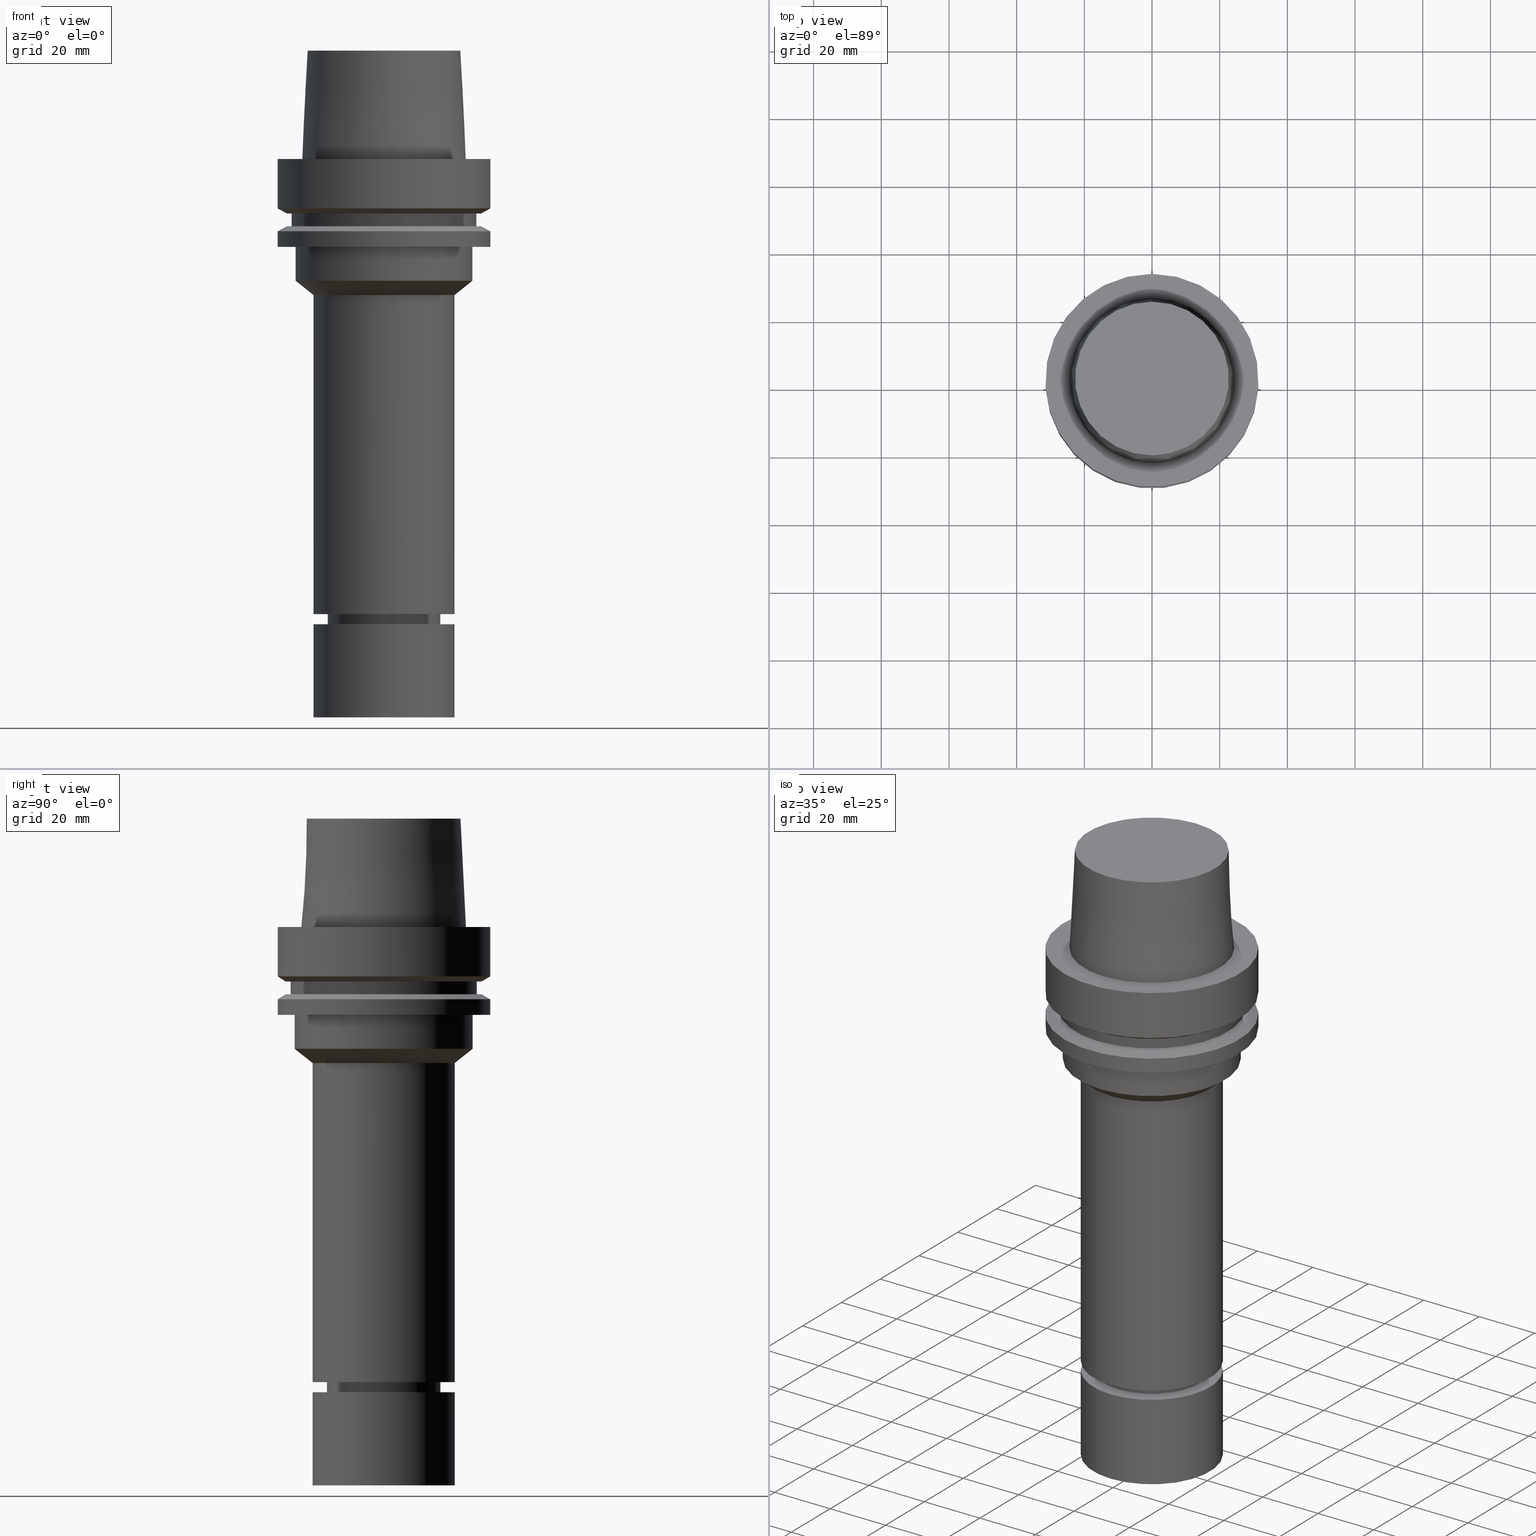
[diagram: canonical four-view strip — front | top / right | iso, engineering-drawing reading convention]
A machine part, canonical four-view strip (front | top / right | iso — engineering-drawing reading convention). The complete STEP part file that produces these views, byte-faithful:
ISO-10303-21;
HEADER;
FILE_DESCRIPTION((''),'1');
FILE_NAME('U:/Translate/02_3D_Field-HP\X2\FF71FF6FFF8CFF9F5916\X0\2013/02_Step_Field-HP\X2\FF71FF6FFF8CFF9F5916\X0\2013/HSK-A63-MEGAER25-165NL.stp','2016-06-22T00:27:31',(''),(''),'Spatial Interop R21 SP3','Kubotek KeyCreator 2011 V10.0.2 (22737)',' ');
FILE_SCHEMA(('automotive_design'));
ENDSEC;
DATA;
#1=MECHANICAL_DESIGN_GEOMETRIC_PRESENTATION_REPRESENTATION(' ',(#14,#15,#16,#17,#18,#19,#20,#21,#22,#23,#24,#25,#26,#27,#28,#29,#30,#31,#32,#33,#34,#35,#36,#37,#38,#39,#40,#41,#42,#43,#44,#45,#46,#47,#48,#49,#50,#51,#52,#53,#54,#55,#56,#57,#58,#59),#10);
#2=PRODUCT_DEFINITION_CONTEXT('',#60,'design');
#3=APPLICATION_PROTOCOL_DEFINITION('INTERNATIONAL STANDARD','automotive_design',1994,#60);
#4=PRODUCT_CATEGORY_RELATIONSHIP('NONE','NONE',#61,#62);
#5=SHAPE_DEFINITION_REPRESENTATION(#63,#64);
#6=PRODUCT_DEFINITION_CONTEXT('',#65,'design');
#7=APPLICATION_PROTOCOL_DEFINITION('INTERNATIONAL STANDARD','automotive_design',1994,#65);
#8=PRODUCT_CATEGORY_RELATIONSHIP('NONE','NONE',#66,#67);
#9=SHAPE_DEFINITION_REPRESENTATION(#68,#69);
#10= (GEOMETRIC_REPRESENTATION_CONTEXT(3)GLOBAL_UNCERTAINTY_ASSIGNED_CONTEXT((#72))GLOBAL_UNIT_ASSIGNED_CONTEXT((#74,#75,#76))REPRESENTATION_CONTEXT('NONE','WORKSPACE'));
#14=STYLED_ITEM('',(#78),#79);
#15=STYLED_ITEM('',(#80,#81),#82);
#16=STYLED_ITEM('',(#83,#84),#85);
#17=STYLED_ITEM('',(#86,#87),#88);
#18=STYLED_ITEM('',(#89),#90);
#19=STYLED_ITEM('',(#91,#92),#93);
#20=STYLED_ITEM('',(#94,#95),#96);
#21=STYLED_ITEM('',(#97,#98),#99);
#22=STYLED_ITEM('',(#100),#101);
#23=STYLED_ITEM('',(#102),#103);
#24=STYLED_ITEM('',(#104,#105),#106);
#25=STYLED_ITEM('',(#107),#108);
#26=STYLED_ITEM('',(#109,#110),#111);
#27=STYLED_ITEM('',(#112),#113);
#28=STYLED_ITEM('',(#114,#115),#116);
#29=STYLED_ITEM('',(#117),#118);
#30=STYLED_ITEM('',(#119,#120),#121);
#31=STYLED_ITEM('',(#122),#123);
#32=STYLED_ITEM('',(#124,#125),#126);
#33=STYLED_ITEM('',(#127,#128),#129);
#34=STYLED_ITEM('',(#130),#131);
#35=STYLED_ITEM('',(#132),#133);
#36=STYLED_ITEM('',(#134),#135);
#37=STYLED_ITEM('',(#136),#137);
#38=STYLED_ITEM('',(#138,#139),#140);
#39=STYLED_ITEM('',(#141,#142),#143);
#40=STYLED_ITEM('',(#144,#145),#146);
#41=STYLED_ITEM('',(#147,#148),#149);
#42=STYLED_ITEM('',(#150,#151),#152);
#43=STYLED_ITEM('',(#153),#154);
#44=STYLED_ITEM('',(#155),#156);
#45=STYLED_ITEM('',(#157,#158),#159);
#46=STYLED_ITEM('',(#160),#161);
#47=STYLED_ITEM('',(#162),#163);
#48=STYLED_ITEM('',(#164),#165);
#49=STYLED_ITEM('',(#166,#167),#168);
#50=STYLED_ITEM('',(#169,#170),#171);
#51=STYLED_ITEM('',(#172),#173);
#52=STYLED_ITEM('',(#174,#175),#176);
#53=STYLED_ITEM('',(#177,#178),#179);
#54=STYLED_ITEM('',(#180,#181),#182);
#55=STYLED_ITEM('',(#183,#184),#185);
#56=STYLED_ITEM('',(#186),#187);
#57=STYLED_ITEM('',(#188,#189),#190);
#58=STYLED_ITEM('',(#191),#192);
#59=STYLED_ITEM('',(#193),#194);
#60=APPLICATION_CONTEXT(' ');
#61=PRODUCT_CATEGORY('part','NONE');
#62=PRODUCT_RELATED_PRODUCT_CATEGORY('detail',' ',(#195));
#63=PRODUCT_DEFINITION_SHAPE('NONE','NONE',#196);
#64=ADVANCED_BREP_SHAPE_REPRESENTATION('Unnamed[1]',(#116,#197),#10);
#65=APPLICATION_CONTEXT(' ');
#66=PRODUCT_CATEGORY('part','NONE');
#67=PRODUCT_RELATED_PRODUCT_CATEGORY('detail',' ',(#198));
#68=PRODUCT_DEFINITION_SHAPE('NONE','NONE',#199);
#69=ADVANCED_BREP_SHAPE_REPRESENTATION('Unnamed[1]',(#152,#200),#10);
#72=UNCERTAINTY_MEASURE_WITH_UNIT(LENGTH_MEASURE(1.0E-006),#74,'','');
#74= (CONVERSION_BASED_UNIT('MILLIMETRE',#203)LENGTH_UNIT()NAMED_UNIT(#206));
#75= (NAMED_UNIT(#208)PLANE_ANGLE_UNIT()SI_UNIT($,.RADIAN.));
#76= (NAMED_UNIT(#208)SOLID_ANGLE_UNIT()SI_UNIT($,.STERADIAN.));
#78=PRESENTATION_STYLE_ASSIGNMENT((#214));
#79=EDGE_CURVE('Unnamed[1]',#215,#215,#216,.T.);
#80=PRESENTATION_STYLE_ASSIGNMENT((#217));
#81=PRESENTATION_STYLE_ASSIGNMENT((#218));
#82=ADVANCED_FACE('Unnamed[1]',(#219,#220),#221,.T.);
#83=PRESENTATION_STYLE_ASSIGNMENT((#222));
#84=PRESENTATION_STYLE_ASSIGNMENT((#223));
#85=ADVANCED_FACE('Unnamed[1]',(#224,#225),#226,.T.);
#86=PRESENTATION_STYLE_ASSIGNMENT((#227));
#87=PRESENTATION_STYLE_ASSIGNMENT((#228));
#88=ADVANCED_FACE('Unnamed[1]',(#229,#230),#231,.T.);
#89=PRESENTATION_STYLE_ASSIGNMENT((#232));
#90=EDGE_CURVE('Unnamed[1]',#233,#233,#234,.T.);
#91=PRESENTATION_STYLE_ASSIGNMENT((#235));
#92=PRESENTATION_STYLE_ASSIGNMENT((#236));
#93=ADVANCED_FACE('Unnamed[1]',(#237),#238,.T.);
#94=PRESENTATION_STYLE_ASSIGNMENT((#239));
#95=PRESENTATION_STYLE_ASSIGNMENT((#240));
#96=ADVANCED_FACE('Unnamed[1]',(#241,#242),#243,.T.);
#97=PRESENTATION_STYLE_ASSIGNMENT((#244));
#98=PRESENTATION_STYLE_ASSIGNMENT((#245));
#99=ADVANCED_FACE('Unnamed[1]',(#246,#247),#248,.T.);
#100=PRESENTATION_STYLE_ASSIGNMENT((#249));
#101=EDGE_CURVE('Unnamed[1]',#250,#250,#251,.T.);
#102=PRESENTATION_STYLE_ASSIGNMENT((#252));
#103=EDGE_CURVE('Unnamed[1]',#253,#253,#254,.T.);
#104=PRESENTATION_STYLE_ASSIGNMENT((#255));
#105=PRESENTATION_STYLE_ASSIGNMENT((#256));
#106=ADVANCED_FACE('Unnamed[1]',(#257),#258,.T.);
#107=PRESENTATION_STYLE_ASSIGNMENT((#259));
#108=EDGE_CURVE('Unnamed[1]',#260,#260,#261,.T.);
#109=PRESENTATION_STYLE_ASSIGNMENT((#262));
#110=PRESENTATION_STYLE_ASSIGNMENT((#263));
#111=ADVANCED_FACE('Unnamed[1]',(#264,#265),#266,.T.);
#112=PRESENTATION_STYLE_ASSIGNMENT((#267));
#113=EDGE_CURVE('Unnamed[1]',#268,#268,#269,.T.);
#114=PRESENTATION_STYLE_ASSIGNMENT((#270));
#115=PRESENTATION_STYLE_ASSIGNMENT((#271));
#116=MANIFOLD_SOLID_BREP('Unnamed[1]',#272);
#117=PRESENTATION_STYLE_ASSIGNMENT((#273));
#118=EDGE_CURVE('Unnamed[1]',#274,#274,#275,.T.);
#119=PRESENTATION_STYLE_ASSIGNMENT((#276));
#120=PRESENTATION_STYLE_ASSIGNMENT((#277));
#121=ADVANCED_FACE('Unnamed[1]',(#278,#279),#280,.T.);
#122=PRESENTATION_STYLE_ASSIGNMENT((#281));
#123=EDGE_CURVE('Unnamed[1]',#282,#282,#283,.T.);
#124=PRESENTATION_STYLE_ASSIGNMENT((#284));
#125=PRESENTATION_STYLE_ASSIGNMENT((#285));
#126=ADVANCED_FACE('Unnamed[1]',(#286,#287),#288,.T.);
#127=PRESENTATION_STYLE_ASSIGNMENT((#289));
#128=PRESENTATION_STYLE_ASSIGNMENT((#290));
#129=ADVANCED_FACE('Unnamed[1]',(#291,#292),#293,.T.);
#130=PRESENTATION_STYLE_ASSIGNMENT((#294));
#131=EDGE_CURVE('Unnamed[1]',#295,#295,#296,.T.);
#132=PRESENTATION_STYLE_ASSIGNMENT((#297));
#133=EDGE_CURVE('Unnamed[1]',#298,#298,#299,.T.);
#134=PRESENTATION_STYLE_ASSIGNMENT((#300));
#135=EDGE_CURVE('Unnamed[1]',#301,#301,#302,.T.);
#136=PRESENTATION_STYLE_ASSIGNMENT((#303));
#137=EDGE_CURVE('Unnamed[1]',#304,#304,#305,.T.);
#138=PRESENTATION_STYLE_ASSIGNMENT((#306));
#139=PRESENTATION_STYLE_ASSIGNMENT((#307));
#140=ADVANCED_FACE('Unnamed[1]',(#308,#309),#310,.T.);
#141=PRESENTATION_STYLE_ASSIGNMENT((#311));
#142=PRESENTATION_STYLE_ASSIGNMENT((#312));
#143=ADVANCED_FACE('Unnamed[1]',(#313,#314),#315,.T.);
#144=PRESENTATION_STYLE_ASSIGNMENT((#316));
#145=PRESENTATION_STYLE_ASSIGNMENT((#317));
#146=ADVANCED_FACE('Unnamed[1]',(#318,#319),#320,.T.);
#147=PRESENTATION_STYLE_ASSIGNMENT((#321));
#148=PRESENTATION_STYLE_ASSIGNMENT((#322));
#149=ADVANCED_FACE('Unnamed[1]',(#323,#324),#325,.T.);
#150=PRESENTATION_STYLE_ASSIGNMENT((#326));
#151=PRESENTATION_STYLE_ASSIGNMENT((#327));
#152=MANIFOLD_SOLID_BREP('Unnamed[1]',#328);
#153=PRESENTATION_STYLE_ASSIGNMENT((#329));
#154=EDGE_CURVE('Unnamed[1]',#330,#330,#331,.T.);
#155=PRESENTATION_STYLE_ASSIGNMENT((#332));
#156=EDGE_CURVE('Unnamed[1]',#333,#333,#334,.T.);
#157=PRESENTATION_STYLE_ASSIGNMENT((#335));
#158=PRESENTATION_STYLE_ASSIGNMENT((#336));
#159=ADVANCED_FACE('Unnamed[1]',(#337,#338),#339,.T.);
#160=PRESENTATION_STYLE_ASSIGNMENT((#340));
#161=EDGE_CURVE('Unnamed[1]',#341,#341,#342,.T.);
#162=PRESENTATION_STYLE_ASSIGNMENT((#343));
#163=EDGE_CURVE('Unnamed[1]',#344,#344,#345,.T.);
#164=PRESENTATION_STYLE_ASSIGNMENT((#346));
#165=EDGE_CURVE('Unnamed[1]',#347,#347,#348,.T.);
#166=PRESENTATION_STYLE_ASSIGNMENT((#349));
#167=PRESENTATION_STYLE_ASSIGNMENT((#350));
#168=ADVANCED_FACE('Unnamed[1]',(#351,#352),#353,.T.);
#169=PRESENTATION_STYLE_ASSIGNMENT((#354));
#170=PRESENTATION_STYLE_ASSIGNMENT((#355));
#171=ADVANCED_FACE('Unnamed[1]',(#356),#357,.T.);
#172=PRESENTATION_STYLE_ASSIGNMENT((#358));
#173=EDGE_CURVE('Unnamed[1]',#359,#359,#360,.T.);
#174=PRESENTATION_STYLE_ASSIGNMENT((#361));
#175=PRESENTATION_STYLE_ASSIGNMENT((#362));
#176=ADVANCED_FACE('Unnamed[1]',(#363),#364,.T.);
#177=PRESENTATION_STYLE_ASSIGNMENT((#365));
#178=PRESENTATION_STYLE_ASSIGNMENT((#366));
#179=ADVANCED_FACE('Unnamed[1]',(#367,#368),#369,.T.);
#180=PRESENTATION_STYLE_ASSIGNMENT((#370));
#181=PRESENTATION_STYLE_ASSIGNMENT((#371));
#182=ADVANCED_FACE('Unnamed[1]',(#372,#373),#374,.T.);
#183=PRESENTATION_STYLE_ASSIGNMENT((#375));
#184=PRESENTATION_STYLE_ASSIGNMENT((#376));
#185=ADVANCED_FACE('Unnamed[1]',(#377,#378),#379,.T.);
#186=PRESENTATION_STYLE_ASSIGNMENT((#380));
#187=EDGE_CURVE('Unnamed[1]',#381,#381,#382,.T.);
#188=PRESENTATION_STYLE_ASSIGNMENT((#383));
#189=PRESENTATION_STYLE_ASSIGNMENT((#384));
#190=ADVANCED_FACE('Unnamed[1]',(#385,#386),#387,.T.);
#191=PRESENTATION_STYLE_ASSIGNMENT((#388));
#192=EDGE_CURVE('Unnamed[1]',#389,#389,#390,.T.);
#193=PRESENTATION_STYLE_ASSIGNMENT((#391));
#194=EDGE_CURVE('Unnamed[1]',#392,#392,#393,.T.);
#195=PRODUCT('Unnamed[1]','Unnamed[1]','PART-Unnamed[1]-DESC',(#394));
#196=PRODUCT_DEFINITION('NONE','NONE',#395,#2);
#197=AXIS2_PLACEMENT_3D('',#396,#397,#398);
#198=PRODUCT('Unnamed[1]','Unnamed[1]','PART-Unnamed[1]-DESC',(#399));
#199=PRODUCT_DEFINITION('NONE','NONE',#400,#6);
#200=AXIS2_PLACEMENT_3D('',#401,#402,#403);
#203=LENGTH_MEASURE_WITH_UNIT(LENGTH_MEASURE(1.0),#404);
#206=DIMENSIONAL_EXPONENTS(1.0,0.0,0.0,0.0,0.0,0.0,0.0);
#208=DIMENSIONAL_EXPONENTS(0.0,0.0,0.0,0.0,0.0,0.0,0.0);
#214=CURVE_STYLE('',#405,POSITIVE_LENGTH_MEASURE(1000.0),#406);
#215=VERTEX_POINT('',#407);
#216=CIRCLE('',#408,21.0);
#217=SURFACE_STYLE_USAGE(.BOTH.,#409);
#218=CURVE_STYLE('',#410,POSITIVE_LENGTH_MEASURE(1000.0),#411);
#219=FACE_BOUND('',#412,.T.);
#220=FACE_BOUND('',#413,.T.);
#221=CONICAL_SURFACE('',#414,30.1987976320959,1.04719755119657);
#222=SURFACE_STYLE_USAGE(.BOTH.,#415);
#223=CURVE_STYLE('',#416,POSITIVE_LENGTH_MEASURE(1000.0),#417);
#224=FACE_BOUND('',#418,.T.);
#225=FACE_BOUND('',#419,.T.);
#226=CONICAL_SURFACE('',#420,30.1987976320959,1.04719755119657);
#227=SURFACE_STYLE_USAGE(.BOTH.,#421);
#228=CURVE_STYLE('',#422,POSITIVE_LENGTH_MEASURE(1000.0),#423);
#229=FACE_BOUND('',#424,.T.);
#230=FACE_BOUND('',#425,.T.);
#231=CYLINDRICAL_SURFACE('',#426,16.0);
#232=CURVE_STYLE('',#427,POSITIVE_LENGTH_MEASURE(1000.0),#428);
#233=VERTEX_POINT('',#429);
#234=CIRCLE('',#430,27.5);
#235=SURFACE_STYLE_USAGE(.BOTH.,#431);
#236=CURVE_STYLE('',#432,POSITIVE_LENGTH_MEASURE(1000.0),#433);
#237=FACE_OUTER_BOUND('',#434,.T.);
#238=PLANE('',#435);
#239=SURFACE_STYLE_USAGE(.BOTH.,#436);
#240=CURVE_STYLE('',#437,POSITIVE_LENGTH_MEASURE(1000.0),#438);
#241=FACE_BOUND('',#439,.T.);
#242=FACE_BOUND('',#440,.T.);
#243=CONICAL_SURFACE('',#441,15.4500000000003,0.523598775598051);
#244=SURFACE_STYLE_USAGE(.BOTH.,#442);
#245=CURVE_STYLE('',#443,POSITIVE_LENGTH_MEASURE(1000.0),#444);
#246=FACE_BOUND('',#445,.T.);
#247=FACE_BOUND('',#446,.T.);
#248=CONICAL_SURFACE('',#447,23.65,0.898977865223857);
#249=CURVE_STYLE('',#448,POSITIVE_LENGTH_MEASURE(1000.0),#449);
#250=VERTEX_POINT('',#450);
#251=CIRCLE('',#451,14.9000000000006);
#252=CURVE_STYLE('',#452,POSITIVE_LENGTH_MEASURE(1000.0),#453);
#253=VERTEX_POINT('',#454);
#254=CIRCLE('',#455,16.7499999999907);
#255=SURFACE_STYLE_USAGE(.BOTH.,#456);
#256=CURVE_STYLE('',#457,POSITIVE_LENGTH_MEASURE(1000.0),#458);
#257=FACE_OUTER_BOUND('',#459,.T.);
#258=PLANE('',#460);
#259=CURVE_STYLE('',#461,POSITIVE_LENGTH_MEASURE(1000.0),#462);
#260=VERTEX_POINT('',#463);
#261=CIRCLE('',#464,21.0);
#262=SURFACE_STYLE_USAGE(.BOTH.,#465);
#263=CURVE_STYLE('',#466,POSITIVE_LENGTH_MEASURE(1000.0),#467);
#264=FACE_BOUND('',#468,.T.);
#265=FACE_BOUND('',#469,.T.);
#266=CYLINDRICAL_SURFACE('',#470,16.7499999999962);
#267=CURVE_STYLE('',#471,POSITIVE_LENGTH_MEASURE(1000.0),#472);
#268=VERTEX_POINT('',#473);
#269=CIRCLE('',#474,24.315);
#270=SURFACE_STYLE_USAGE(.BOTH.,#475);
#271=CURVE_STYLE('',#476,POSITIVE_LENGTH_MEASURE(1000.0),#477);
#272=CLOSED_SHELL('',(#93,#96,#88,#179,#111,#143,#140,#99,#159,#182,#146,#82,#126,#121,#168,#85,#190,#185,#129,#171));
#273=CURVE_STYLE('',#478,POSITIVE_LENGTH_MEASURE(1000.0),#479);
#274=VERTEX_POINT('',#480);
#275=CIRCLE('',#481,21.0);
#276=SURFACE_STYLE_USAGE(.BOTH.,#482);
#277=CURVE_STYLE('',#483,POSITIVE_LENGTH_MEASURE(1000.0),#484);
#278=FACE_BOUND('',#485,.T.);
#279=FACE_BOUND('',#486,.T.);
#280=CYLINDRICAL_SURFACE('',#487,27.4999999999994);
#281=CURVE_STYLE('',#488,POSITIVE_LENGTH_MEASURE(1000.0),#489);
#282=VERTEX_POINT('',#490);
#283=CIRCLE('',#491,16.0);
#284=SURFACE_STYLE_USAGE(.BOTH.,#492);
#285=CURVE_STYLE('',#493,POSITIVE_LENGTH_MEASURE(1000.0),#494);
#286=FACE_BOUND('',#495,.T.);
#287=FACE_OUTER_BOUND('',#496,.T.);
#288=PLANE('',#497);
#289=SURFACE_STYLE_USAGE(.BOTH.,#498);
#290=CURVE_STYLE('',#499,POSITIVE_LENGTH_MEASURE(1000.0),#500);
#291=FACE_BOUND('',#501,.T.);
#292=FACE_BOUND('',#502,.T.);
#293=CONICAL_SURFACE('',#503,23.515,0.0499583957219433);
#294=CURVE_STYLE('',#504,POSITIVE_LENGTH_MEASURE(1000.0),#505);
#295=VERTEX_POINT('',#506);
#296=CIRCLE('',#507,16.0);
#297=CURVE_STYLE('',#508,POSITIVE_LENGTH_MEASURE(1000.0),#509);
#298=VERTEX_POINT('',#510);
#299=CIRCLE('',#511,26.3);
#300=CURVE_STYLE('',#512,POSITIVE_LENGTH_MEASURE(1000.0),#513);
#301=VERTEX_POINT('',#514);
#302=CIRCLE('',#515,28.8975952641919);
#303=CURVE_STYLE('',#516,POSITIVE_LENGTH_MEASURE(1000.0),#517);
#304=VERTEX_POINT('',#518);
#305=CIRCLE('',#519,31.4999999999998);
#306=SURFACE_STYLE_USAGE(.BOTH.,#520);
#307=CURVE_STYLE('',#521,POSITIVE_LENGTH_MEASURE(1000.0),#522);
#308=FACE_BOUND('',#523,.T.);
#309=FACE_BOUND('',#524,.T.);
#310=CYLINDRICAL_SURFACE('',#525,21.0);
#311=SURFACE_STYLE_USAGE(.BOTH.,#526);
#312=CURVE_STYLE('',#527,POSITIVE_LENGTH_MEASURE(1000.0),#528);
#313=FACE_OUTER_BOUND('',#529,.T.);
#314=FACE_BOUND('',#530,.T.);
#315=PLANE('',#531);
#316=SURFACE_STYLE_USAGE(.BOTH.,#532);
#317=CURVE_STYLE('',#533,POSITIVE_LENGTH_MEASURE(1000.0),#534);
#318=FACE_BOUND('',#535,.T.);
#319=FACE_BOUND('',#536,.T.);
#320=CYLINDRICAL_SURFACE('',#537,31.4999999999999);
#321=SURFACE_STYLE_USAGE(.BOTH.,#538);
#322=CURVE_STYLE('',#539,POSITIVE_LENGTH_MEASURE(1000.0),#540);
#323=FACE_BOUND('',#541,.T.);
#324=FACE_BOUND('',#542,.T.);
#325=CYLINDRICAL_SURFACE('',#543,21.0);
#326=SURFACE_STYLE_USAGE(.BOTH.,#544);
#327=CURVE_STYLE('',#545,POSITIVE_LENGTH_MEASURE(1000.0),#546);
#328=CLOSED_SHELL('',(#176,#106,#149));
#329=CURVE_STYLE('',#547,POSITIVE_LENGTH_MEASURE(1000.0),#548);
#330=VERTEX_POINT('',#549);
#331=CIRCLE('',#550,22.715);
#332=CURVE_STYLE('',#551,POSITIVE_LENGTH_MEASURE(1000.0),#552);
#333=VERTEX_POINT('',#553);
#334=CIRCLE('',#554,16.7500000000017);
#335=SURFACE_STYLE_USAGE(.BOTH.,#555);
#336=CURVE_STYLE('',#556,POSITIVE_LENGTH_MEASURE(1000.0),#557);
#337=FACE_BOUND('',#558,.T.);
#338=FACE_BOUND('',#559,.T.);
#339=CYLINDRICAL_SURFACE('',#560,26.3);
#340=CURVE_STYLE('',#561,POSITIVE_LENGTH_MEASURE(1000.0),#562);
#341=VERTEX_POINT('',#563);
#342=CIRCLE('',#564,27.4999999999989);
#343=CURVE_STYLE('',#565,POSITIVE_LENGTH_MEASURE(1000.0),#566);
#344=VERTEX_POINT('',#567);
#345=CIRCLE('',#568,28.8975952641919);
#346=CURVE_STYLE('',#569,POSITIVE_LENGTH_MEASURE(1000.0),#570);
#347=VERTEX_POINT('',#571);
#348=CIRCLE('',#572,26.3);
#349=SURFACE_STYLE_USAGE(.BOTH.,#573);
#350=CURVE_STYLE('',#574,POSITIVE_LENGTH_MEASURE(1000.0),#575);
#351=FACE_OUTER_BOUND('',#576,.T.);
#352=FACE_BOUND('',#577,.T.);
#353=PLANE('',#578);
#354=SURFACE_STYLE_USAGE(.BOTH.,#579);
#355=CURVE_STYLE('',#580,POSITIVE_LENGTH_MEASURE(1000.0),#581);
#356=FACE_OUTER_BOUND('',#582,.T.);
#357=PLANE('',#583);
#358=CURVE_STYLE('',#584,POSITIVE_LENGTH_MEASURE(1000.0),#585);
#359=VERTEX_POINT('',#586);
#360=CIRCLE('',#587,31.5);
#361=SURFACE_STYLE_USAGE(.BOTH.,#588);
#362=CURVE_STYLE('',#589,POSITIVE_LENGTH_MEASURE(1000.0),#590);
#363=FACE_OUTER_BOUND('',#591,.T.);
#364=PLANE('',#592);
#365=SURFACE_STYLE_USAGE(.BOTH.,#593);
#366=CURVE_STYLE('',#594,POSITIVE_LENGTH_MEASURE(1000.0),#595);
#367=FACE_BOUND('',#596,.T.);
#368=FACE_BOUND('',#597,.T.);
#369=CONICAL_SURFACE('',#598,16.3750000000008,0.846178977409367);
#370=SURFACE_STYLE_USAGE(.BOTH.,#599);
#371=CURVE_STYLE('',#600,POSITIVE_LENGTH_MEASURE(1000.0),#601);
#372=FACE_OUTER_BOUND('',#602,.T.);
#373=FACE_BOUND('',#603,.T.);
#374=PLANE('',#604);
#375=SURFACE_STYLE_USAGE(.BOTH.,#605);
#376=CURVE_STYLE('',#606,POSITIVE_LENGTH_MEASURE(1000.0),#607);
#377=FACE_BOUND('',#608,.T.);
#378=FACE_OUTER_BOUND('',#609,.T.);
#379=PLANE('',#610);
#380=CURVE_STYLE('',#611,POSITIVE_LENGTH_MEASURE(1000.0),#612);
#381=VERTEX_POINT('',#613);
#382=CIRCLE('',#614,31.5000000000001);
#383=SURFACE_STYLE_USAGE(.BOTH.,#615);
#384=CURVE_STYLE('',#616,POSITIVE_LENGTH_MEASURE(1000.0),#617);
#385=FACE_BOUND('',#618,.T.);
#386=FACE_BOUND('',#619,.T.);
#387=CYLINDRICAL_SURFACE('',#620,31.5);
#388=CURVE_STYLE('',#621,POSITIVE_LENGTH_MEASURE(1000.0),#622);
#389=VERTEX_POINT('',#623);
#390=CIRCLE('',#624,21.0);
#391=CURVE_STYLE('',#625,POSITIVE_LENGTH_MEASURE(1000.0),#626);
#392=VERTEX_POINT('',#627);
#393=CIRCLE('',#628,31.5);
#394=PRODUCT_CONTEXT('',#60,'mechanical');
#395=PRODUCT_DEFINITION_FORMATION_WITH_SPECIFIED_SOURCE(' ','NONE',#195,.NOT_KNOWN.);
#396=CARTESIAN_POINT('',(0.0,0.0,0.0));
#397=DIRECTION('',(0.0,0.0,1.0));
#398=DIRECTION('',(1.0,0.0,0.0));
#399=PRODUCT_CONTEXT('',#65,'mechanical');
#400=PRODUCT_DEFINITION_FORMATION_WITH_SPECIFIED_SOURCE(' ','NONE',#198,.NOT_KNOWN.);
#401=CARTESIAN_POINT('',(0.0,0.0,0.0));
#402=DIRECTION('',(0.0,0.0,1.0));
#403=DIRECTION('',(1.0,0.0,0.0));
#404= (NAMED_UNIT(#206)LENGTH_UNIT()SI_UNIT(.MILLI.,.METRE.));
#405=DRAUGHTING_PRE_DEFINED_CURVE_FONT('continuous');
#406=COLOUR_RGB('',0.0,1.0,0.0);
#407=CARTESIAN_POINT('',(8.41944674413805E-015,21.0,-137.5));
#408=AXIS2_PLACEMENT_3D('',#630,#631,#632);
#409=SURFACE_SIDE_STYLE('',(#633));
#410=DRAUGHTING_PRE_DEFINED_CURVE_FONT('continuous');
#411=COLOUR_RGB('',0.0,1.0,0.0);
#412=EDGE_LOOP('',(#634));
#413=EDGE_LOOP('',(#635));
#414=AXIS2_PLACEMENT_3D('',#636,#637,#638);
#415=SURFACE_SIDE_STYLE('',(#639));
#416=DRAUGHTING_PRE_DEFINED_CURVE_FONT('continuous');
#417=COLOUR_RGB('',0.0,1.0,0.0);
#418=EDGE_LOOP('',(#640));
#419=EDGE_LOOP('',(#641));
#420=AXIS2_PLACEMENT_3D('',#642,#643,#644);
#421=SURFACE_SIDE_STYLE('',(#645));
#422=DRAUGHTING_PRE_DEFINED_CURVE_FONT('continuous');
#423=COLOUR_RGB('',0.0,1.0,0.0);
#424=EDGE_LOOP('',(#646));
#425=EDGE_LOOP('',(#647));
#426=AXIS2_PLACEMENT_3D('',#648,#649,#650);
#427=DRAUGHTING_PRE_DEFINED_CURVE_FONT('continuous');
#428=COLOUR_RGB('',0.0,1.0,0.0);
#429=CARTESIAN_POINT('',(9.87371481812537E-016,27.5,-16.1249999999997));
#430=AXIS2_PLACEMENT_3D('',#651,#652,#653);
#431=SURFACE_SIDE_STYLE('',(#654));
#432=DRAUGHTING_PRE_DEFINED_CURVE_FONT('continuous');
#433=COLOUR_RGB('',0.0,1.0,0.0);
#434=EDGE_LOOP('',(#655));
#435=AXIS2_PLACEMENT_3D('',#656,#657,#658);
#436=SURFACE_SIDE_STYLE('',(#659));
#437=DRAUGHTING_PRE_DEFINED_CURVE_FONT('continuous');
#438=COLOUR_RGB('',0.0,1.0,0.0);
#439=EDGE_LOOP('',(#660));
#440=EDGE_LOOP('',(#661));
#441=AXIS2_PLACEMENT_3D('',#662,#663,#664);
#442=SURFACE_SIDE_STYLE('',(#665));
#443=DRAUGHTING_PRE_DEFINED_CURVE_FONT('continuous');
#444=COLOUR_RGB('',0.0,1.0,0.0);
#445=EDGE_LOOP('',(#666));
#446=EDGE_LOOP('',(#667));
#447=AXIS2_PLACEMENT_3D('',#668,#669,#670);
#448=DRAUGHTING_PRE_DEFINED_CURVE_FONT('continuous');
#449=COLOUR_RGB('',0.0,1.0,0.0);
#450=CARTESIAN_POINT('',(9.47876622540052E-015,14.9000000000007,-154.8));
#451=AXIS2_PLACEMENT_3D('',#671,#672,#673);
#452=DRAUGHTING_PRE_DEFINED_CURVE_FONT('continuous');
#453=COLOUR_RGB('',0.0,1.0,0.0);
#454=CARTESIAN_POINT('',(8.2357497242659E-015,16.7499999999907,-134.499999999999));
#455=AXIS2_PLACEMENT_3D('',#674,#675,#676);
#456=SURFACE_SIDE_STYLE('',(#677));
#457=DRAUGHTING_PRE_DEFINED_CURVE_FONT('continuous');
#458=COLOUR_RGB('',0.0,1.0,0.0);
#459=EDGE_LOOP('',(#678));
#460=AXIS2_PLACEMENT_3D('',#679,#680,#681);
#461=DRAUGHTING_PRE_DEFINED_CURVE_FONT('continuous');
#462=COLOUR_RGB('',0.0,1.0,0.0);
#463=CARTESIAN_POINT('',(1.01033360929657E-014,21.0,-165.0));
#464=AXIS2_PLACEMENT_3D('',#682,#683,#684);
#465=SURFACE_SIDE_STYLE('',(#685));
#466=DRAUGHTING_PRE_DEFINED_CURVE_FONT('continuous');
#467=COLOUR_RGB('',0.0,1.0,0.0);
#468=EDGE_LOOP('',(#686));
#469=EDGE_LOOP('',(#687));
#470=AXIS2_PLACEMENT_3D('',#688,#689,#690);
#471=DRAUGHTING_PRE_DEFINED_CURVE_FONT('continuous');
#472=COLOUR_RGB('',0.0,1.0,0.0);
#473=CARTESIAN_POINT('',(-2.99705514225764E-031,24.315,2.97772869212679E-015));
#474=AXIS2_PLACEMENT_3D('',#691,#692,#693);
#475=SURFACE_SIDE_STYLE('',(#694));
#476=DRAUGHTING_PRE_DEFINED_CURVE_FONT('continuous');
#477=COLOUR_RGB('',0.0,1.0,0.0);
#478=DRAUGHTING_PRE_DEFINED_CURVE_FONT('continuous');
#479=COLOUR_RGB('',0.0,1.0,0.0);
#480=CARTESIAN_POINT('',(2.46243754685596E-015,21.0,-40.21465697));
#481=AXIS2_PLACEMENT_3D('',#695,#696,#697);
#482=SURFACE_SIDE_STYLE('',(#698));
#483=DRAUGHTING_PRE_DEFINED_CURVE_FONT('continuous');
#484=COLOUR_RGB('',0.0,1.0,0.0);
#485=EDGE_LOOP('',(#699));
#486=EDGE_LOOP('',(#700));
#487=AXIS2_PLACEMENT_3D('',#701,#702,#703);
#488=DRAUGHTING_PRE_DEFINED_CURVE_FONT('continuous');
#489=COLOUR_RGB('',0.0,1.0,0.0);
#490=CARTESIAN_POINT('',(9.36210294914078E-015,16.0,-152.894744111674));
#491=AXIS2_PLACEMENT_3D('',#704,#705,#706);
#492=SURFACE_SIDE_STYLE('',(#707));
#493=DRAUGHTING_PRE_DEFINED_CURVE_FONT('continuous');
#494=COLOUR_RGB('',0.0,1.0,0.0);
#495=EDGE_LOOP('',(#708));
#496=EDGE_LOOP('',(#709));
#497=AXIS2_PLACEMENT_3D('',#710,#711,#712);
#498=SURFACE_SIDE_STYLE('',(#713));
#499=DRAUGHTING_PRE_DEFINED_CURVE_FONT('continuous');
#500=COLOUR_RGB('',0.0,1.0,0.0);
#501=EDGE_LOOP('',(#714));
#502=EDGE_LOOP('',(#715));
#503=AXIS2_PLACEMENT_3D('',#716,#717,#718);
#504=DRAUGHTING_PRE_DEFINED_CURVE_FONT('continuous');
#505=COLOUR_RGB('',0.0,1.0,0.0);
#506=CARTESIAN_POINT('',(8.64179837321123E-015,16.0,-141.131277674967));
#507=AXIS2_PLACEMENT_3D('',#719,#720,#721);
#508=DRAUGHTING_PRE_DEFINED_CURVE_FONT('continuous');
#509=COLOUR_RGB('',0.0,1.0,0.0);
#510=CARTESIAN_POINT('',(2.20436423799915E-015,26.3,-35.9999999923883));
#511=AXIS2_PLACEMENT_3D('',#722,#723,#724);
#512=DRAUGHTING_PRE_DEFINED_CURVE_FONT('continuous');
#513=COLOUR_RGB('',0.0,1.0,0.0);
#514=CARTESIAN_POINT('',(1.21699275665268E-015,28.8975952641919,-19.875));
#515=AXIS2_PLACEMENT_3D('',#725,#726,#727);
#516=DRAUGHTING_PRE_DEFINED_CURVE_FONT('continuous');
#517=COLOUR_RGB('',0.0,1.0,0.0);
#518=CARTESIAN_POINT('',(1.59204083889155E-015,31.4999999999998,-25.9999999999999));
#519=AXIS2_PLACEMENT_3D('',#728,#729,#730);
#520=SURFACE_SIDE_STYLE('',(#731));
#521=DRAUGHTING_PRE_DEFINED_CURVE_FONT('continuous');
#522=COLOUR_RGB('',0.0,1.0,0.0);
#523=EDGE_LOOP('',(#732));
#524=EDGE_LOOP('',(#733));
#525=AXIS2_PLACEMENT_3D('',#734,#735,#736);
#526=SURFACE_SIDE_STYLE('',(#737));
#527=DRAUGHTING_PRE_DEFINED_CURVE_FONT('continuous');
#528=COLOUR_RGB('',0.0,1.0,0.0);
#529=EDGE_LOOP('',(#738));
#530=EDGE_LOOP('',(#739));
#531=AXIS2_PLACEMENT_3D('',#740,#741,#742);
#532=SURFACE_SIDE_STYLE('',(#743));
#533=DRAUGHTING_PRE_DEFINED_CURVE_FONT('continuous');
#534=COLOUR_RGB('',0.0,1.0,0.0);
#535=EDGE_LOOP('',(#744));
#536=EDGE_LOOP('',(#745));
#537=AXIS2_PLACEMENT_3D('',#746,#747,#748);
#538=SURFACE_SIDE_STYLE('',(#749));
#539=DRAUGHTING_PRE_DEFINED_CURVE_FONT('continuous');
#540=COLOUR_RGB('',0.0,1.0,0.0);
#541=EDGE_LOOP('',(#750));
#542=EDGE_LOOP('',(#751));
#543=AXIS2_PLACEMENT_3D('',#752,#753,#754);
#544=SURFACE_SIDE_STYLE('',(#755));
#545=DRAUGHTING_PRE_DEFINED_CURVE_FONT('continuous');
#546=COLOUR_RGB('',0.0,1.0,0.0);
#547=DRAUGHTING_PRE_DEFINED_CURVE_FONT('continuous');
#548=COLOUR_RGB('',0.0,1.0,0.0);
#549=CARTESIAN_POINT('',(-1.95943487863576E-015,22.715,32.0));
#550=AXIS2_PLACEMENT_3D('',#756,#757,#758);
#551=DRAUGHTING_PRE_DEFINED_CURVE_FONT('continuous');
#552=COLOUR_RGB('',0.0,1.0,0.0);
#553=CARTESIAN_POINT('',(8.60114298906023E-015,16.7500000000017,-140.467324865401));
#554=AXIS2_PLACEMENT_3D('',#759,#760,#761);
#555=SURFACE_SIDE_STYLE('',(#762));
#556=DRAUGHTING_PRE_DEFINED_CURVE_FONT('continuous');
#557=COLOUR_RGB('',0.0,1.0,0.0);
#558=EDGE_LOOP('',(#763));
#559=EDGE_LOOP('',(#764));
#560=AXIS2_PLACEMENT_3D('',#765,#766,#767);
#561=DRAUGHTING_PRE_DEFINED_CURVE_FONT('continuous');
#562=COLOUR_RGB('',0.0,1.0,0.0);
#563=CARTESIAN_POINT('',(1.21699275665276E-015,27.4999999999989,-19.8750000000013));
#564=AXIS2_PLACEMENT_3D('',#768,#769,#770);
#565=DRAUGHTING_PRE_DEFINED_CURVE_FONT('continuous');
#566=COLOUR_RGB('',0.0,1.0,0.0);
#567=CARTESIAN_POINT('',(9.87371481812551E-016,28.8975952641919,-16.125));
#568=AXIS2_PLACEMENT_3D('',#771,#772,#773);
#569=DRAUGHTING_PRE_DEFINED_CURVE_FONT('continuous');
#570=COLOUR_RGB('',0.0,1.0,0.0);
#571=CARTESIAN_POINT('',(1.59204083889154E-015,26.3,-25.9999999999997));
#572=AXIS2_PLACEMENT_3D('',#774,#775,#776);
#573=SURFACE_SIDE_STYLE('',(#777));
#574=DRAUGHTING_PRE_DEFINED_CURVE_FONT('continuous');
#575=COLOUR_RGB('',0.0,1.0,0.0);
#576=EDGE_LOOP('',(#778));
#577=EDGE_LOOP('',(#779));
#578=AXIS2_PLACEMENT_3D('',#780,#781,#782);
#579=SURFACE_SIDE_STYLE('',(#783));
#580=DRAUGHTING_PRE_DEFINED_CURVE_FONT('continuous');
#581=COLOUR_RGB('',0.0,1.0,0.0);
#582=EDGE_LOOP('',(#784));
#583=AXIS2_PLACEMENT_3D('',#785,#786,#787);
#584=DRAUGHTING_PRE_DEFINED_CURVE_FONT('continuous');
#585=COLOUR_RGB('',0.0,1.0,0.0);
#586=CARTESIAN_POINT('',(1.30899429078397E-015,31.5,-21.3774990747592));
#587=AXIS2_PLACEMENT_3D('',#788,#789,#790);
#588=SURFACE_SIDE_STYLE('',(#791));
#589=DRAUGHTING_PRE_DEFINED_CURVE_FONT('continuous');
#590=COLOUR_RGB('',0.0,1.0,0.0);
#591=EDGE_LOOP('',(#792));
#592=AXIS2_PLACEMENT_3D('',#793,#794,#795);
#593=SURFACE_SIDE_STYLE('',(#796));
#594=DRAUGHTING_PRE_DEFINED_CURVE_FONT('continuous');
#595=COLOUR_RGB('',0.0,1.0,0.0);
#596=EDGE_LOOP('',(#797));
#597=EDGE_LOOP('',(#798));
#598=AXIS2_PLACEMENT_3D('',#799,#800,#801);
#599=SURFACE_SIDE_STYLE('',(#802));
#600=DRAUGHTING_PRE_DEFINED_CURVE_FONT('continuous');
#601=COLOUR_RGB('',0.0,1.0,0.0);
#602=EDGE_LOOP('',(#803));
#603=EDGE_LOOP('',(#804));
#604=AXIS2_PLACEMENT_3D('',#805,#806,#807);
#605=SURFACE_SIDE_STYLE('',(#808));
#606=DRAUGHTING_PRE_DEFINED_CURVE_FONT('continuous');
#607=COLOUR_RGB('',0.0,1.0,0.0);
#608=EDGE_LOOP('',(#809));
#609=EDGE_LOOP('',(#810));
#610=AXIS2_PLACEMENT_3D('',#811,#812,#813);
#611=DRAUGHTING_PRE_DEFINED_CURVE_FONT('continuous');
#612=COLOUR_RGB('',0.0,1.0,0.0);
#613=CARTESIAN_POINT('',(-3.88267476788467E-031,31.5000000000001,3.85763741731417E-015));
#614=AXIS2_PLACEMENT_3D('',#814,#815,#816);
#615=SURFACE_SIDE_STYLE('',(#817));
#616=DRAUGHTING_PRE_DEFINED_CURVE_FONT('continuous');
#617=COLOUR_RGB('',0.0,1.0,0.0);
#618=EDGE_LOOP('',(#818));
#619=EDGE_LOOP('',(#819));
#620=AXIS2_PLACEMENT_3D('',#820,#821,#822);
#621=DRAUGHTING_PRE_DEFINED_CURVE_FONT('continuous');
#622=COLOUR_RGB('',0.0,1.0,0.0);
#623=CARTESIAN_POINT('',(8.23574972426594E-015,21.0,-134.5));
#624=AXIS2_PLACEMENT_3D('',#823,#824,#825);
#625=DRAUGHTING_PRE_DEFINED_CURVE_FONT('continuous');
#626=COLOUR_RGB('',0.0,1.0,0.0);
#627=CARTESIAN_POINT('',(8.95369947681261E-016,31.5,-14.6225009252407));
#628=AXIS2_PLACEMENT_3D('',#826,#827,#828);
#630=CARTESIAN_POINT('',(8.41944674413805E-015,1.68388934882761E-014,-137.5));
#631=DIRECTION('',(6.12323399573677E-017,1.22464679914735E-016,-1.0));
#632=DIRECTION('',(-1.23259516440783E-032,1.0,1.22464679914735E-016));
#633=SURFACE_STYLE_FILL_AREA(#829);
#634=ORIENTED_EDGE('',*,*,#135,.F.);
#635=ORIENTED_EDGE('',*,*,#173,.T.);
#636=CARTESIAN_POINT('',(1.26299352371833E-015,2.52598704743665E-015,-20.6262495373796));
#637=DIRECTION('',(6.12323399573677E-017,1.22464679914735E-016,-1.0));
#638=DIRECTION('',(-1.23259516440783E-032,1.0,1.22464679914735E-016));
#639=SURFACE_STYLE_FILL_AREA(#830);
#640=ORIENTED_EDGE('',*,*,#194,.F.);
#641=ORIENTED_EDGE('',*,*,#163,.T.);
#642=CARTESIAN_POINT('',(9.41370714746907E-016,1.88274142949381E-015,-15.3737504626203));
#643=DIRECTION('',(-6.12323399573677E-017,-1.22464679914735E-016,1.0));
#644=DIRECTION('',(-1.23259516440783E-032,1.0,1.22464679914735E-016));
#645=SURFACE_STYLE_FILL_AREA(#831);
#646=ORIENTED_EDGE('',*,*,#131,.F.);
#647=ORIENTED_EDGE('',*,*,#123,.T.);
#648=CARTESIAN_POINT('',(9.00195066117601E-015,1.8003901322352E-014,-147.013010893321));
#649=DIRECTION('',(-6.12323399573677E-017,-1.22464679914735E-016,1.0));
#650=DIRECTION('',(-1.23259516440783E-032,1.0,1.22464679914735E-016));
#651=CARTESIAN_POINT('',(9.87371481812538E-016,1.97474296362508E-015,-16.1249999999997));
#652=DIRECTION('',(-6.12323399573677E-017,-1.22464679914735E-016,1.0));
#653=DIRECTION('',(-1.23259516440783E-032,1.0,1.22464679914735E-016));
#654=SURFACE_STYLE_FILL_AREA(#832);
#655=ORIENTED_EDGE('',*,*,#101,.F.);
#656=CARTESIAN_POINT('',(9.47876622540051E-015,7.45000000000034,-154.8));
#657=DIRECTION('',(6.12323399573677E-017,-2.65824972010006E-014,-1.0));
#658=DIRECTION('',(-1.62288135279668E-030,-1.0,2.65824972010006E-014));
#659=SURFACE_STYLE_FILL_AREA(#833);
#660=ORIENTED_EDGE('',*,*,#123,.F.);
#661=ORIENTED_EDGE('',*,*,#101,.T.);
#662=CARTESIAN_POINT('',(9.42043458727065E-015,1.88408691745413E-014,-153.847372055837));
#663=DIRECTION('',(-6.12323399573677E-017,-1.22464679914735E-016,1.0));
#664=DIRECTION('',(-1.23259516440783E-032,1.0,1.22464679914735E-016));
#665=SURFACE_STYLE_FILL_AREA(#834);
#666=ORIENTED_EDGE('',*,*,#133,.F.);
#667=ORIENTED_EDGE('',*,*,#118,.T.);
#668=CARTESIAN_POINT('',(2.33340089242756E-015,4.66680178485512E-015,-38.1073284811941));
#669=DIRECTION('',(-6.12323399573677E-017,-1.22464679914735E-016,1.0));
#670=DIRECTION('',(-1.23259516440783E-032,1.0,1.22464679914735E-016));
#671=CARTESIAN_POINT('',(9.47876622540052E-015,1.8957532450801E-014,-154.8));
#672=DIRECTION('',(-6.12323399573677E-017,-1.22464679914735E-016,1.0));
#673=DIRECTION('',(-1.23259516440783E-032,1.0,1.22464679914735E-016));
#674=CARTESIAN_POINT('',(8.2357497242659E-015,1.64714994485318E-014,-134.499999999999));
#675=DIRECTION('',(-6.12323399573677E-017,-1.22464679914735E-016,1.0));
#676=DIRECTION('',(-1.23259516440783E-032,1.0,1.22464679914735E-016));
#677=SURFACE_STYLE_FILL_AREA(#835);
#678=ORIENTED_EDGE('',*,*,#79,.F.);
#679=CARTESIAN_POINT('',(8.41944674413805E-015,10.5,-137.5));
#680=DIRECTION('',(-6.12323399573677E-017,-1.22464679914735E-016,1.0));
#681=DIRECTION('',(1.23259516440783E-032,-1.0,-1.22464679914735E-016));
#682=CARTESIAN_POINT('',(1.01033360929657E-014,2.02066721859313E-014,-165.0));
#683=DIRECTION('',(6.12323399573677E-017,1.22464679914735E-016,-1.0));
#684=DIRECTION('',(-1.23259516440783E-032,1.0,1.22464679914735E-016));
#685=SURFACE_STYLE_FILL_AREA(#836);
#686=ORIENTED_EDGE('',*,*,#103,.F.);
#687=ORIENTED_EDGE('',*,*,#156,.T.);
#688=CARTESIAN_POINT('',(8.41844635666307E-015,1.68368927133261E-014,-137.4836624327));
#689=DIRECTION('',(-6.12323399573676E-017,-1.22464679914735E-016,1.0));
#690=DIRECTION('',(-1.23259516440783E-032,1.0,1.22464679914735E-016));
#691=CARTESIAN_POINT('',(0.0,0.0,0.0));
#692=DIRECTION('',(-6.12323399573677E-017,-1.22464679914735E-016,1.0));
#693=DIRECTION('',(-1.23259516440783E-032,1.0,1.22464679914735E-016));
#694=SURFACE_STYLE_FILL_AREA(#837);
#695=CARTESIAN_POINT('',(2.46243754685597E-015,4.92487509371193E-015,-40.21465697));
#696=DIRECTION('',(-6.12323399573677E-017,-1.22464679914735E-016,1.0));
#697=DIRECTION('',(-1.23259516440783E-032,1.0,1.22464679914735E-016));
#698=SURFACE_STYLE_FILL_AREA(#838);
#699=ORIENTED_EDGE('',*,*,#90,.F.);
#700=ORIENTED_EDGE('',*,*,#161,.T.);
#701=CARTESIAN_POINT('',(1.10218211923265E-015,2.2043642384653E-015,-18.0000000000005));
#702=DIRECTION('',(-6.12323399573677E-017,-1.22464679914735E-016,1.0));
#703=DIRECTION('',(-1.23259516440783E-032,1.0,1.22464679914735E-016));
#704=CARTESIAN_POINT('',(9.36210294914078E-015,1.87242058982816E-014,-152.894744111674));
#705=DIRECTION('',(-6.12323399573677E-017,-1.22464679914735E-016,1.0));
#706=DIRECTION('',(-1.23259516440783E-032,1.0,1.22464679914735E-016));
#707=SURFACE_STYLE_FILL_AREA(#839);
#708=ORIENTED_EDGE('',*,*,#161,.F.);
#709=ORIENTED_EDGE('',*,*,#135,.T.);
#710=CARTESIAN_POINT('',(1.21699275665272E-015,28.1987976320954,-19.8750000000006));
#711=DIRECTION('',(-6.12323399573677E-017,-9.58463617675421E-013,1.0));
#712=DIRECTION('',(-5.86937972270006E-029,1.0,9.58463617675421E-013));
#713=SURFACE_STYLE_FILL_AREA(#840);
#714=ORIENTED_EDGE('',*,*,#154,.F.);
#715=ORIENTED_EDGE('',*,*,#113,.T.);
#716=CARTESIAN_POINT('',(-9.79717439317882E-016,-1.95943487863576E-015,16.0));
#717=DIRECTION('',(6.12323399573677E-017,1.22464679914735E-016,-1.0));
#718=DIRECTION('',(-1.23259516440783E-032,1.0,1.22464679914735E-016));
#719=CARTESIAN_POINT('',(8.64179837321123E-015,1.72835967464225E-014,-141.131277674967));
#720=DIRECTION('',(-6.12323399573677E-017,-1.22464679914735E-016,1.0));
#721=DIRECTION('',(-1.23259516440783E-032,1.0,1.22464679914735E-016));
#722=CARTESIAN_POINT('',(2.20436423799915E-015,4.4087284759983E-015,-35.9999999923883));
#723=DIRECTION('',(-6.12323399573677E-017,-1.22464679914735E-016,1.0));
#724=DIRECTION('',(-1.23259516440783E-032,1.0,1.22464679914735E-016));
#725=CARTESIAN_POINT('',(1.21699275665268E-015,2.43398551330536E-015,-19.875));
#726=DIRECTION('',(-6.12323399573677E-017,-1.22464679914735E-016,1.0));
#727=DIRECTION('',(-1.23259516440783E-032,1.0,1.22464679914735E-016));
#728=CARTESIAN_POINT('',(1.59204083889155E-015,3.1840816777831E-015,-25.9999999999999));
#729=DIRECTION('',(-6.12323399573676E-017,-1.22464679914735E-016,1.0));
#730=DIRECTION('',(-1.23259516440783E-032,1.0,1.22464679914735E-016));
#731=SURFACE_STYLE_FILL_AREA(#841);
#732=ORIENTED_EDGE('',*,*,#118,.F.);
#733=ORIENTED_EDGE('',*,*,#192,.T.);
#734=CARTESIAN_POINT('',(5.34909363556095E-015,1.06981872711219E-014,-87.357328485));
#735=DIRECTION('',(-6.12323399573677E-017,-1.22464679914735E-016,1.0));
#736=DIRECTION('',(-1.23259516440783E-032,1.0,1.22464679914735E-016));
#737=SURFACE_STYLE_FILL_AREA(#842);
#738=ORIENTED_EDGE('',*,*,#192,.F.);
#739=ORIENTED_EDGE('',*,*,#103,.T.);
#740=CARTESIAN_POINT('',(8.23574972426592E-015,18.8749999999954,-134.5));
#741=DIRECTION('',(6.12323399573677E-017,-1.60376600338487E-013,-1.0));
#742=DIRECTION('',(-9.81540736040237E-030,-1.0,1.60376600338487E-013));
#743=SURFACE_STYLE_FILL_AREA(#843);
#744=ORIENTED_EDGE('',*,*,#173,.F.);
#745=ORIENTED_EDGE('',*,*,#137,.T.);
#746=CARTESIAN_POINT('',(1.45051756483776E-015,2.90103512967552E-015,-23.6887495373796));
#747=DIRECTION('',(-6.12323399573677E-017,-1.22464679914735E-016,1.0));
#748=DIRECTION('',(-1.23259516440783E-032,1.0,1.22464679914735E-016));
#749=SURFACE_STYLE_FILL_AREA(#844);
#750=ORIENTED_EDGE('',*,*,#108,.F.);
#751=ORIENTED_EDGE('',*,*,#79,.T.);
#752=CARTESIAN_POINT('',(9.26139141855186E-015,1.85227828371037E-014,-151.25));
#753=DIRECTION('',(6.12323399573677E-017,1.22464679914735E-016,-1.0));
#754=DIRECTION('',(-1.23259516440783E-032,1.0,1.22464679914735E-016));
#755=SURFACE_STYLE_FILL_AREA(#845);
#756=CARTESIAN_POINT('',(-1.95943487863576E-015,-3.91886975727153E-015,32.0));
#757=DIRECTION('',(-6.12323399573676E-017,-1.22464679914735E-016,1.0));
#758=DIRECTION('',(-1.23259516440783E-032,1.0,1.22464679914735E-016));
#759=CARTESIAN_POINT('',(8.60114298906023E-015,1.72022859781205E-014,-140.467324865401));
#760=DIRECTION('',(-6.12323399573677E-017,-1.22464679914735E-016,1.0));
#761=DIRECTION('',(-1.23259516440783E-032,1.0,1.22464679914735E-016));
#762=SURFACE_STYLE_FILL_AREA(#846);
#763=ORIENTED_EDGE('',*,*,#165,.F.);
#764=ORIENTED_EDGE('',*,*,#133,.T.);
#765=CARTESIAN_POINT('',(1.89820253844535E-015,3.79640507689069E-015,-30.999999996194));
#766=DIRECTION('',(-6.12323399573677E-017,-1.22464679914735E-016,1.0));
#767=DIRECTION('',(-1.23259516440783E-032,1.0,1.22464679914735E-016));
#768=CARTESIAN_POINT('',(1.21699275665276E-015,2.43398551330552E-015,-19.8750000000013));
#769=DIRECTION('',(-6.12323399573677E-017,-1.22464679914735E-016,1.0));
#770=DIRECTION('',(-1.23259516440783E-032,1.0,1.22464679914735E-016));
#771=CARTESIAN_POINT('',(9.87371481812552E-016,1.9747429636251E-015,-16.125));
#772=DIRECTION('',(-6.12323399573677E-017,-1.22464679914735E-016,1.0));
#773=DIRECTION('',(-1.23259516440783E-032,1.0,1.22464679914735E-016));
#774=CARTESIAN_POINT('',(1.59204083889154E-015,3.18408167778308E-015,-25.9999999999997));
#775=DIRECTION('',(-6.12323399573677E-017,-1.22464679914735E-016,1.0));
#776=DIRECTION('',(-1.23259516440783E-032,1.0,1.22464679914735E-016));
#777=SURFACE_STYLE_FILL_AREA(#847);
#778=ORIENTED_EDGE('',*,*,#163,.F.);
#779=ORIENTED_EDGE('',*,*,#90,.T.);
#780=CARTESIAN_POINT('',(9.87371481812544E-016,28.1987976320959,-16.1249999999999));
#781=DIRECTION('',(6.12323399573677E-017,-1.65108768595307E-013,-1.0));
#782=DIRECTION('',(-1.01051690958394E-029,-1.0,1.65108768595307E-013));
#783=SURFACE_STYLE_FILL_AREA(#848);
#784=ORIENTED_EDGE('',*,*,#154,.T.);
#785=CARTESIAN_POINT('',(-1.95943487863576E-015,11.3575,32.0));
#786=DIRECTION('',(-6.12323399573677E-017,9.72362339746437E-016,1.0));
#787=DIRECTION('',(5.47128686183263E-032,1.0,-9.72362339746437E-016));
#788=CARTESIAN_POINT('',(1.30899429078397E-015,2.61798858156794E-015,-21.3774990747592));
#789=DIRECTION('',(-6.12323399573677E-017,-1.22464679914735E-016,1.0));
#790=DIRECTION('',(-1.23259516440783E-032,1.0,1.22464679914735E-016));
#791=SURFACE_STYLE_FILL_AREA(#849);
#792=ORIENTED_EDGE('',*,*,#108,.T.);
#793=CARTESIAN_POINT('',(1.01033360929657E-014,10.5,-165.0));
#794=DIRECTION('',(6.12323399573677E-017,1.22464679914735E-016,-1.0));
#795=DIRECTION('',(-1.23259516440783E-032,1.0,1.22464679914735E-016));
#796=SURFACE_STYLE_FILL_AREA(#850);
#797=ORIENTED_EDGE('',*,*,#156,.F.);
#798=ORIENTED_EDGE('',*,*,#131,.T.);
#799=CARTESIAN_POINT('',(8.62147068113573E-015,1.72429413622715E-014,-140.799301270184));
#800=DIRECTION('',(-6.12323399573677E-017,-1.22464679914735E-016,1.0));
#801=DIRECTION('',(-1.23259516440783E-032,1.0,1.22464679914735E-016));
#802=SURFACE_STYLE_FILL_AREA(#851);
#803=ORIENTED_EDGE('',*,*,#137,.F.);
#804=ORIENTED_EDGE('',*,*,#165,.T.);
#805=CARTESIAN_POINT('',(1.59204083889155E-015,28.8999999999999,-25.9999999999998));
#806=DIRECTION('',(6.12323399573677E-017,-4.01871712910923E-014,-1.0));
#807=DIRECTION('',(-2.45592738169036E-030,-1.0,4.01871712910923E-014));
#808=SURFACE_STYLE_FILL_AREA(#852);
#809=ORIENTED_EDGE('',*,*,#113,.F.);
#810=ORIENTED_EDGE('',*,*,#187,.T.);
#811=CARTESIAN_POINT('',(-3.43986495507116E-031,27.9075,3.41768305472048E-015));
#812=DIRECTION('',(-6.12323399573677E-017,-1.22464679914735E-016,1.0));
#813=DIRECTION('',(-1.23259516440783E-032,1.0,1.22464679914735E-016));
#814=CARTESIAN_POINT('',(0.0,0.0,0.0));
#815=DIRECTION('',(-6.12323399573677E-017,-1.22464679914735E-016,1.0));
#816=DIRECTION('',(-1.23259516440783E-032,1.0,1.22464679914735E-016));
#817=SURFACE_STYLE_FILL_AREA(#853);
#818=ORIENTED_EDGE('',*,*,#187,.F.);
#819=ORIENTED_EDGE('',*,*,#194,.T.);
#820=CARTESIAN_POINT('',(4.47684973840631E-016,8.95369947681262E-016,-7.31125046262035));
#821=DIRECTION('',(-6.12323399573677E-017,-1.22464679914735E-016,1.0));
#822=DIRECTION('',(-1.23259516440783E-032,1.0,1.22464679914735E-016));
#823=CARTESIAN_POINT('',(8.23574972426594E-015,1.64714994485319E-014,-134.5));
#824=DIRECTION('',(-6.12323399573677E-017,-1.22464679914735E-016,1.0));
#825=DIRECTION('',(-1.23259516440783E-032,1.0,1.22464679914735E-016));
#826=CARTESIAN_POINT('',(8.95369947681262E-016,1.79073989536252E-015,-14.6225009252407));
#827=DIRECTION('',(-6.12323399573677E-017,-1.22464679914735E-016,1.0));
#828=DIRECTION('',(-1.23259516440783E-032,1.0,1.22464679914735E-016));
#829=FILL_AREA_STYLE('',(#854));
#830=FILL_AREA_STYLE('',(#855));
#831=FILL_AREA_STYLE('',(#856));
#832=FILL_AREA_STYLE('',(#857));
#833=FILL_AREA_STYLE('',(#858));
#834=FILL_AREA_STYLE('',(#859));
#835=FILL_AREA_STYLE('',(#860));
#836=FILL_AREA_STYLE('',(#861));
#837=FILL_AREA_STYLE('',(#862));
#838=FILL_AREA_STYLE('',(#863));
#839=FILL_AREA_STYLE('',(#864));
#840=FILL_AREA_STYLE('',(#865));
#841=FILL_AREA_STYLE('',(#866));
#842=FILL_AREA_STYLE('',(#867));
#843=FILL_AREA_STYLE('',(#868));
#844=FILL_AREA_STYLE('',(#869));
#845=FILL_AREA_STYLE('',(#870));
#846=FILL_AREA_STYLE('',(#871));
#847=FILL_AREA_STYLE('',(#872));
#848=FILL_AREA_STYLE('',(#873));
#849=FILL_AREA_STYLE('',(#874));
#850=FILL_AREA_STYLE('',(#875));
#851=FILL_AREA_STYLE('',(#876));
#852=FILL_AREA_STYLE('',(#877));
#853=FILL_AREA_STYLE('',(#878));
#854=FILL_AREA_STYLE_COLOUR('',#879);
#855=FILL_AREA_STYLE_COLOUR('',#880);
#856=FILL_AREA_STYLE_COLOUR('',#881);
#857=FILL_AREA_STYLE_COLOUR('',#882);
#858=FILL_AREA_STYLE_COLOUR('',#883);
#859=FILL_AREA_STYLE_COLOUR('',#884);
#860=FILL_AREA_STYLE_COLOUR('',#885);
#861=FILL_AREA_STYLE_COLOUR('',#886);
#862=FILL_AREA_STYLE_COLOUR('',#887);
#863=FILL_AREA_STYLE_COLOUR('',#888);
#864=FILL_AREA_STYLE_COLOUR('',#889);
#865=FILL_AREA_STYLE_COLOUR('',#890);
#866=FILL_AREA_STYLE_COLOUR('',#891);
#867=FILL_AREA_STYLE_COLOUR('',#892);
#868=FILL_AREA_STYLE_COLOUR('',#893);
#869=FILL_AREA_STYLE_COLOUR('',#894);
#870=FILL_AREA_STYLE_COLOUR('',#895);
#871=FILL_AREA_STYLE_COLOUR('',#896);
#872=FILL_AREA_STYLE_COLOUR('',#897);
#873=FILL_AREA_STYLE_COLOUR('',#898);
#874=FILL_AREA_STYLE_COLOUR('',#899);
#875=FILL_AREA_STYLE_COLOUR('',#900);
#876=FILL_AREA_STYLE_COLOUR('',#901);
#877=FILL_AREA_STYLE_COLOUR('',#902);
#878=FILL_AREA_STYLE_COLOUR('',#903);
#879=COLOUR_RGB('',0.0,1.0,0.0);
#880=COLOUR_RGB('',0.0,1.0,0.0);
#881=COLOUR_RGB('',0.0,1.0,0.0);
#882=COLOUR_RGB('',0.0,1.0,0.0);
#883=COLOUR_RGB('',0.0,1.0,0.0);
#884=COLOUR_RGB('',0.0,1.0,0.0);
#885=COLOUR_RGB('',0.0,1.0,0.0);
#886=COLOUR_RGB('',0.0,1.0,0.0);
#887=COLOUR_RGB('',0.0,1.0,0.0);
#888=COLOUR_RGB('',0.0,1.0,0.0);
#889=COLOUR_RGB('',0.0,1.0,0.0);
#890=COLOUR_RGB('',0.0,1.0,0.0);
#891=COLOUR_RGB('',0.0,1.0,0.0);
#892=COLOUR_RGB('',0.0,1.0,0.0);
#893=COLOUR_RGB('',0.0,1.0,0.0);
#894=COLOUR_RGB('',0.0,1.0,0.0);
#895=COLOUR_RGB('',0.0,1.0,0.0);
#896=COLOUR_RGB('',0.0,1.0,0.0);
#897=COLOUR_RGB('',0.0,1.0,0.0);
#898=COLOUR_RGB('',0.0,1.0,0.0);
#899=COLOUR_RGB('',0.0,1.0,0.0);
#900=COLOUR_RGB('',0.0,1.0,0.0);
#901=COLOUR_RGB('',0.0,1.0,0.0);
#902=COLOUR_RGB('',0.0,1.0,0.0);
#903=COLOUR_RGB('',0.0,1.0,0.0);
ENDSEC;
END-ISO-10303-21;
